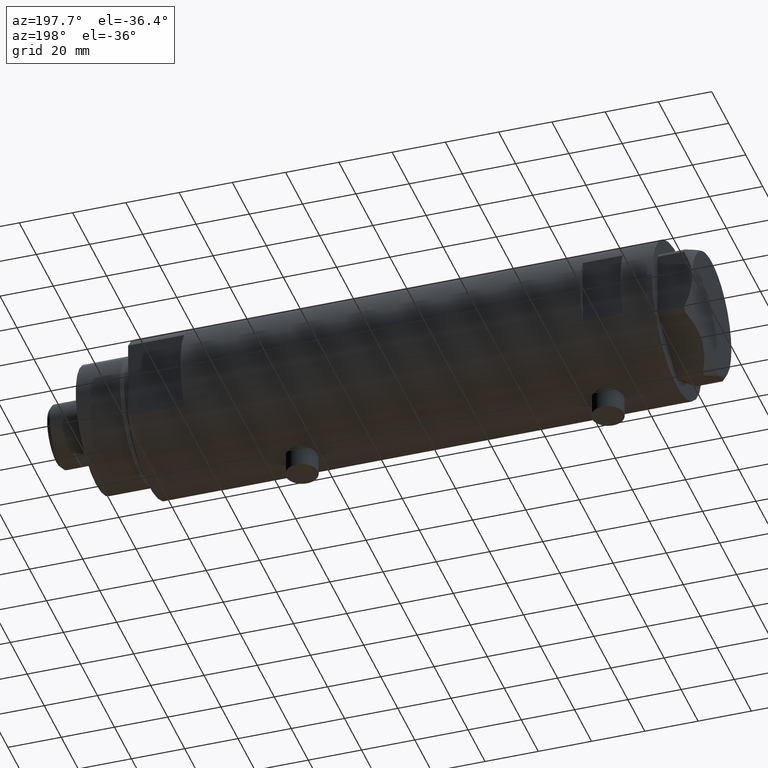
[diagram: clean part render]
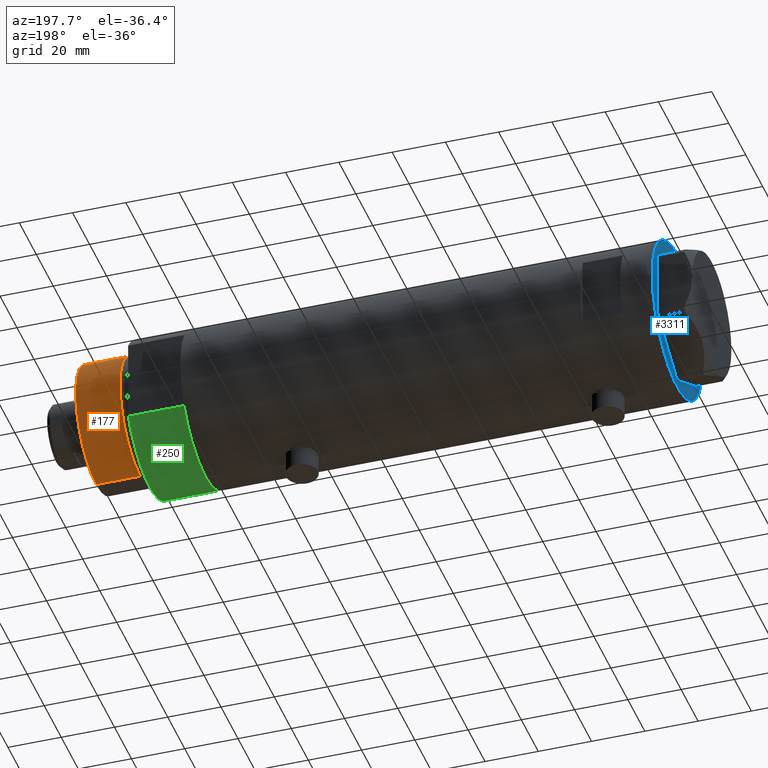
[diagram: same view with three faces highlighted in distinct colors, each labeled with its STEP entity id]
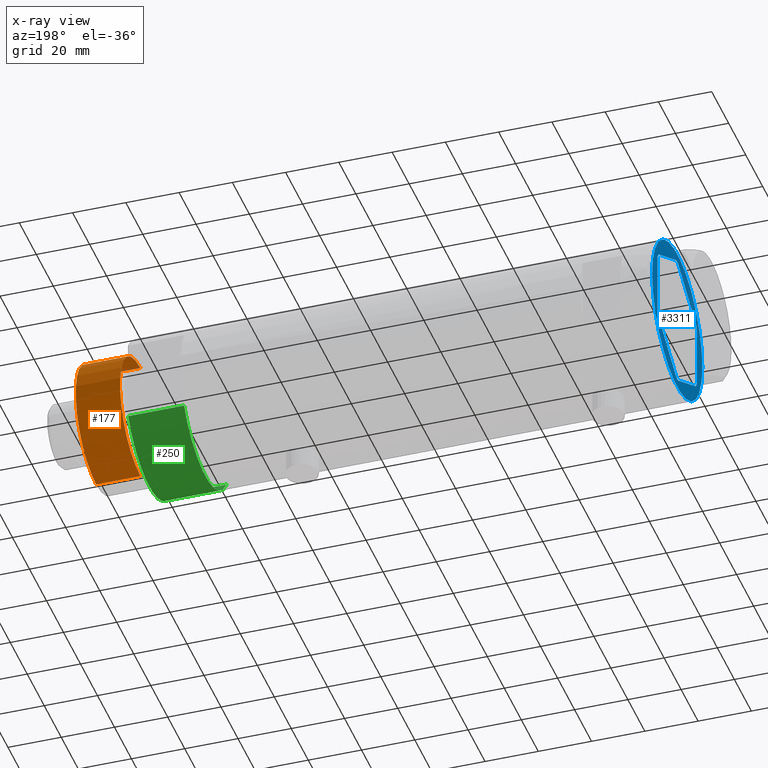
[diagram: x-ray of the same camera — body ghosted, the three highlighted faces saturated]
A machine part, auxiliary view with three faces highlighted in distinct colors.
The next image is the same camera in x-ray (body ghosted, the three faces saturated) — at least one of them is partly hidden behind the body in this view.
Their STEP definitions:

[orange] entity #177 — the highlighted cylindrical surface (partial cylindrical patch) has radius 24 mm, axis along (-1, -0, 0).
#177 = ADVANCED_FACE ( 'NONE', ( #2908 ), #809, .T. ) ;
#221 = DIRECTION ( 'NONE',  ( 1.000000000000000000, 0.000000000000000000, 0.000000000000000000 ) ) ;
#228 = ORIENTED_EDGE ( 'NONE', *, *, #3316, .F. ) ;
#359 = EDGE_CURVE ( 'NONE', #992, #3082, #1311, .T. ) ;
#479 = EDGE_CURVE ( 'NONE', #956, #3082, #4084, .T. ) ;
#809 = CYLINDRICAL_SURFACE ( 'NONE', #3227, 24.00000000000000355 ) ;
#924 = EDGE_LOOP ( 'NONE', ( #228, #1087, #1819, #1460 ) ) ;
#956 = VERTEX_POINT ( 'NONE', #1099 ) ;
#962 = DIRECTION ( 'NONE',  ( -0.000000000000000000, -0.000000000000000000, 1.000000000000000000 ) ) ;
#992 = VERTEX_POINT ( 'NONE', #2160 ) ;
#1087 = ORIENTED_EDGE ( 'NONE', *, *, #1793, .T. ) ;
#1099 = CARTESIAN_POINT ( 'NONE',  ( 24.00000000000000355, 2.939152317953648289E-15, 24.37384048104054557 ) ) ;
#1180 = CARTESIAN_POINT ( 'NONE',  ( 24.00000000000000355, 2.939152317953648289E-15, 41.00000000000000000 ) ) ;
#1311 = LINE ( 'NONE', #4023, #4305 ) ;
#1449 = LINE ( 'NONE', #1180, #2949 ) ;
#1453 = VERTEX_POINT ( 'NONE', #2882 ) ;
#1460 = ORIENTED_EDGE ( 'NONE', *, *, #359, .F. ) ;
#1793 = EDGE_CURVE ( 'NONE', #1453, #956, #1449, .T. ) ;
#1819 = ORIENTED_EDGE ( 'NONE', *, *, #479, .T. ) ;
#1924 = CARTESIAN_POINT ( 'NONE',  ( 0.000000000000000000, 0.000000000000000000, 41.00000000000000000 ) ) ;
#2028 = DIRECTION ( 'NONE',  ( 1.000000000000000000, 0.000000000000000000, 0.000000000000000000 ) ) ;
#2152 = CARTESIAN_POINT ( 'NONE',  ( 0.000000000000000000, 0.000000000000000000, 41.00000000000000000 ) ) ;
#2160 = CARTESIAN_POINT ( 'NONE',  ( -24.00000000000000355, 0.000000000000000000, 41.00000000000000000 ) ) ;
#2309 = DIRECTION ( 'NONE',  ( -0.000000000000000000, -0.000000000000000000, -1.000000000000000000 ) ) ;
#2566 = DIRECTION ( 'NONE',  ( -1.000000000000000000, 0.000000000000000000, 0.000000000000000000 ) ) ;
#2882 = CARTESIAN_POINT ( 'NONE',  ( 24.00000000000000355, 2.939152317953648289E-15, 41.00000000000000000 ) ) ;
#2908 = FACE_OUTER_BOUND ( 'NONE', #924, .T. ) ;
#2949 = VECTOR ( 'NONE', #3502, 1000.000000000000000 ) ;
#3082 = VERTEX_POINT ( 'NONE', #4200 ) ;
#3227 = AXIS2_PLACEMENT_3D ( 'NONE', #2152, #3959, #2566 ) ;
#3309 = DIRECTION ( 'NONE',  ( 0.000000000000000000, 0.000000000000000000, 1.000000000000000000 ) ) ;
#3316 = EDGE_CURVE ( 'NONE', #1453, #992, #3966, .T. ) ;
#3502 = DIRECTION ( 'NONE',  ( -0.000000000000000000, -0.000000000000000000, -1.000000000000000000 ) ) ;
#3752 = CARTESIAN_POINT ( 'NONE',  ( 0.000000000000000000, 0.000000000000000000, 24.37384048104054557 ) ) ;
#3867 = AXIS2_PLACEMENT_3D ( 'NONE', #3752, #962, #2028 ) ;
#3959 = DIRECTION ( 'NONE',  ( -0.000000000000000000, -0.000000000000000000, -1.000000000000000000 ) ) ;
#3966 = CIRCLE ( 'NONE', #4258, 24.00000000000000355 ) ;
#4023 = CARTESIAN_POINT ( 'NONE',  ( -24.00000000000000355, 0.000000000000000000, 41.00000000000000000 ) ) ;
#4084 = CIRCLE ( 'NONE', #3867, 24.00000000000000355 ) ;
#4200 = CARTESIAN_POINT ( 'NONE',  ( -24.00000000000000355, 0.000000000000000000, 24.37384048104054557 ) ) ;
#4258 = AXIS2_PLACEMENT_3D ( 'NONE', #1924, #3309, #221 ) ;
#4305 = VECTOR ( 'NONE', #2309, 1000.000000000000000 ) ;

[blue] entity #3311 — the highlighted planar face has unit normal (1, 0, -0).
#10 = CARTESIAN_POINT ( 'NONE',  ( 22.51502577388080795, -12.99905619136115398, 0.000000000000000000 ) ) ;
#40 = CARTESIAN_POINT ( 'NONE',  ( -22.99999999999990408, -13.27905619136147841, 0.000000000000000000 ) ) ;
#42 = LINE ( 'NONE', #3452, #3749 ) ;
#43 = CARTESIAN_POINT ( 'NONE',  ( 1.859873512960652550E-13, -25.99811238272274139, 0.000000000000000000 ) ) ;
#49 = ORIENTED_EDGE ( 'NONE', *, *, #3998, .F. ) ;
#81 = VECTOR ( 'NONE', #251, 1000.000000000000000 ) ;
#115 = DIRECTION ( 'NONE',  ( 0.000000000000000000, 0.000000000000000000, -1.000000000000000000 ) ) ;
#184 = VERTEX_POINT ( 'NONE', #3915 ) ;
#206 = VECTOR ( 'NONE', #1881, 1000.000000000000000 ) ;
#251 = DIRECTION ( 'NONE',  ( 1.000000000000000000, 3.576939520802682722E-15, -0.000000000000000000 ) ) ;
#268 = CIRCLE ( 'NONE', #2791, 29.50000000000000355 ) ;
#372 = DIRECTION ( 'NONE',  ( -1.000000000000000000, 0.000000000000000000, 0.000000000000000000 ) ) ;
#426 = ORIENTED_EDGE ( 'NONE', *, *, #2103, .F. ) ;
#442 = CARTESIAN_POINT ( 'NONE',  ( 23.00000000000008527, -13.27905619136115867, 0.000000000000000000 ) ) ;
#457 = CARTESIAN_POINT ( 'NONE',  ( 22.03005154776124996, 13.83905619136162635, 0.000000000000000000 ) ) ;
#460 = ORIENTED_EDGE ( 'NONE', *, *, #1480, .F. ) ;
#507 = LINE ( 'NONE', #1162, #206 ) ;
#531 = EDGE_CURVE ( 'NONE', #4172, #3897, #268, .T. ) ;
#576 = DIRECTION ( 'NONE',  ( -1.000000000000000000, 0.000000000000000000, 0.000000000000000000 ) ) ;
#592 = CARTESIAN_POINT ( 'NONE',  ( -9.299367564803055752E-14, 25.99811238272273428, 0.000000000000000000 ) ) ;
#665 = EDGE_CURVE ( 'NONE', #3297, #3108, #507, .T. ) ;
#725 = DIRECTION ( 'NONE',  ( 0.8660254037844415942, -0.4999999999999950595, 0.000000000000000000 ) ) ;
#764 = CARTESIAN_POINT ( 'NONE',  ( 0.000000000000000000, 26.55811238272274366, 0.000000000000000000 ) ) ;
#780 = CIRCLE ( 'NONE', #1498, 29.50000000000000355 ) ;
#826 = EDGE_CURVE ( 'NONE', #3897, #4172, #780, .T. ) ;
#853 = DIRECTION ( 'NONE',  ( 0.8660254037844345998, 0.5000000000000069944, 0.000000000000000000 ) ) ;
#854 = LINE ( 'NONE', #3986, #1419 ) ;
#865 = EDGE_CURVE ( 'NONE', #184, #1700, #2617, .T. ) ;
#897 = EDGE_CURVE ( 'NONE', #3200, #3108, #854, .T. ) ;
#913 = DIRECTION ( 'NONE',  ( 0.000000000000000000, 0.000000000000000000, -1.000000000000000000 ) ) ;
#963 = PLANE ( 'NONE',  #2161 ) ;
#1002 = VECTOR ( 'NONE', #2764, 1000.000000000000000 ) ;
#1018 = LINE ( 'NONE', #40, #3682 ) ;
#1123 = ORIENTED_EDGE ( 'NONE', *, *, #665, .F. ) ;
#1162 = CARTESIAN_POINT ( 'NONE',  ( -22.99999999999999645, 13.27905619136132032, 0.000000000000000000 ) ) ;
#1233 = VECTOR ( 'NONE', #1813, 1000.000000000000000 ) ;
#1294 = FACE_OUTER_BOUND ( 'NONE', #3157, .T. ) ;
#1348 = VECTOR ( 'NONE', #4145, 999.9999999999998863 ) ;
#1355 = VERTEX_POINT ( 'NONE', #1767 ) ;
#1390 = LINE ( 'NONE', #2819, #1348 ) ;
#1392 = CARTESIAN_POINT ( 'NONE',  ( 23.00000000000007461, -12.15905619136117721, 0.000000000000000000 ) ) ;
#1418 = DIRECTION ( 'NONE',  ( 0.4999999999999986677, 0.8660254037844392627, -0.000000000000000000 ) ) ;
#1419 = VECTOR ( 'NONE', #3827, 1000.000000000000000 ) ;
#1429 = VECTOR ( 'NONE', #1749, 999.9999999999998863 ) ;
#1480 = EDGE_CURVE ( 'NONE', #2479, #1510, #2251, .T. ) ;
#1498 = AXIS2_PLACEMENT_3D ( 'NONE', #4005, #913, #576 ) ;
#1510 = VERTEX_POINT ( 'NONE', #4300 ) ;
#1519 = ORIENTED_EDGE ( 'NONE', *, *, #3651, .T. ) ;
#1536 = ORIENTED_EDGE ( 'NONE', *, *, #2512, .T. ) ;
#1700 = VERTEX_POINT ( 'NONE', #1811 ) ;
#1722 = LINE ( 'NONE', #4164, #1429 ) ;
#1748 = EDGE_CURVE ( 'NONE', #2479, #2421, #4225, .T. ) ;
#1749 = DIRECTION ( 'NONE',  ( 0.5000000000000086597, -0.8660254037844337116, -0.000000000000000000 ) ) ;
#1767 = CARTESIAN_POINT ( 'NONE',  ( 22.99999999999982236, 12.15905619136166571, 0.000000000000000000 ) ) ;
#1811 = CARTESIAN_POINT ( 'NONE',  ( -22.03005154776141339, 13.83905619136132792, 0.000000000000000000 ) ) ;
#1813 = DIRECTION ( 'NONE',  ( -1.032024811306395780E-14, 1.000000000000000000, 0.000000000000000000 ) ) ;
#1881 = DIRECTION ( 'NONE',  ( 3.527173405730720141E-15, -1.000000000000000000, 0.000000000000000000 ) ) ;
#1895 = LINE ( 'NONE', #592, #81 ) ;
#1946 = CARTESIAN_POINT ( 'NONE',  ( 1.854543075583504180E-13, -26.55811238272274366, 0.000000000000000000 ) ) ;
#1953 = ORIENTED_EDGE ( 'NONE', *, *, #4263, .T. ) ;
#1986 = CARTESIAN_POINT ( 'NONE',  ( 0.000000000000000000, 0.000000000000000000, 0.000000000000000000 ) ) ;
#2103 = EDGE_CURVE ( 'NONE', #3121, #3020, #1390, .T. ) ;
#2133 = DIRECTION ( 'NONE',  ( -0.8660254037844380415, -0.5000000000000008882, 0.000000000000000000 ) ) ;
#2147 = CARTESIAN_POINT ( 'NONE',  ( 0.000000000000000000, 0.000000000000000000, 0.000000000000000000 ) ) ;
#2161 = AXIS2_PLACEMENT_3D ( 'NONE', #1986, #115, #4245 ) ;
#2251 = LINE ( 'NONE', #1946, #4384 ) ;
#2302 = CARTESIAN_POINT ( 'NONE',  ( 29.50000000000000355, 0.000000000000000000, 0.000000000000000000 ) ) ;
#2421 = VERTEX_POINT ( 'NONE', #2681 ) ;
#2479 = VERTEX_POINT ( 'NONE', #3463 ) ;
#2481 = EDGE_CURVE ( 'NONE', #4397, #1510, #2718, .T. ) ;
#2512 = EDGE_CURVE ( 'NONE', #3121, #1355, #1722, .T. ) ;
#2617 = LINE ( 'NONE', #764, #3231 ) ;
#2629 = CARTESIAN_POINT ( 'NONE',  ( -29.50000000000000355, 3.612708057484692393E-15, 0.000000000000000000 ) ) ;
#2681 = CARTESIAN_POINT ( 'NONE',  ( -0.9699484522383873264, -25.99811238272275205, 0.000000000000000000 ) ) ;
#2718 = LINE ( 'NONE', #10, #1002 ) ;
#2764 = DIRECTION ( 'NONE',  ( -0.4999999999999915623, -0.8660254037844434816, -0.000000000000000000 ) ) ;
#2791 = AXIS2_PLACEMENT_3D ( 'NONE', #2147, #3860, #372 ) ;
#2819 = CARTESIAN_POINT ( 'NONE',  ( 22.99999999999981171, 13.27905619136164184, 0.000000000000000000 ) ) ;
#2865 = EDGE_LOOP ( 'NONE', ( #426, #1536, #3384, #4124, #460, #3487, #49, #3702, #1123, #1519, #3506, #1953 ) ) ;
#2973 = CARTESIAN_POINT ( 'NONE',  ( -22.03005154776132102, -13.83905619136147536, 0.000000000000000000 ) ) ;
#3013 = CARTESIAN_POINT ( 'NONE',  ( -22.99999999999999289, 12.15905619136131754, 0.000000000000000000 ) ) ;
#3020 = VERTEX_POINT ( 'NONE', #3209 ) ;
#3064 = ORIENTED_EDGE ( 'NONE', *, *, #826, .F. ) ;
#3108 = VERTEX_POINT ( 'NONE', #3186 ) ;
#3121 = VERTEX_POINT ( 'NONE', #457 ) ;
#3157 = EDGE_LOOP ( 'NONE', ( #4423, #3064 ) ) ;
#3186 = CARTESIAN_POINT ( 'NONE',  ( -22.99999999999990763, -12.15905619136148985, 0.000000000000000000 ) ) ;
#3200 = VERTEX_POINT ( 'NONE', #2973 ) ;
#3209 = CARTESIAN_POINT ( 'NONE',  ( 0.9699484522385886098, 25.99811238272273783, 0.000000000000000000 ) ) ;
#3231 = VECTOR ( 'NONE', #2133, 1000.000000000000227 ) ;
#3297 = VERTEX_POINT ( 'NONE', #3013 ) ;
#3311 = ADVANCED_FACE ( 'NONE', ( #3711, #1294 ), #963, .F. ) ;
#3376 = VECTOR ( 'NONE', #3838, 1000.000000000000000 ) ;
#3384 = ORIENTED_EDGE ( 'NONE', *, *, #3724, .F. ) ;
#3452 = CARTESIAN_POINT ( 'NONE',  ( -22.51502577388069781, 12.99905619136134050, 0.000000000000000000 ) ) ;
#3463 = CARTESIAN_POINT ( 'NONE',  ( 0.9699484522387533669, -25.99811238272273428, 0.000000000000000000 ) ) ;
#3487 = ORIENTED_EDGE ( 'NONE', *, *, #1748, .T. ) ;
#3506 = ORIENTED_EDGE ( 'NONE', *, *, #865, .F. ) ;
#3577 = LINE ( 'NONE', #442, #1233 ) ;
#3651 = EDGE_CURVE ( 'NONE', #3297, #1700, #42, .T. ) ;
#3682 = VECTOR ( 'NONE', #725, 1000.000000000000000 ) ;
#3702 = ORIENTED_EDGE ( 'NONE', *, *, #897, .T. ) ;
#3711 = FACE_BOUND ( 'NONE', #2865, .T. ) ;
#3724 = EDGE_CURVE ( 'NONE', #4397, #1355, #3577, .T. ) ;
#3749 = VECTOR ( 'NONE', #1418, 1000.000000000000227 ) ;
#3827 = DIRECTION ( 'NONE',  ( -0.5000000000000086597, 0.8660254037844337116, -0.000000000000000000 ) ) ;
#3838 = DIRECTION ( 'NONE',  ( -1.000000000000000000, -7.153879041605523216E-15, -0.000000000000000000 ) ) ;
#3860 = DIRECTION ( 'NONE',  ( 0.000000000000000000, 0.000000000000000000, -1.000000000000000000 ) ) ;
#3897 = VERTEX_POINT ( 'NONE', #2629 ) ;
#3915 = CARTESIAN_POINT ( 'NONE',  ( -0.9699484522385893870, 25.99811238272273073, 0.000000000000000000 ) ) ;
#3986 = CARTESIAN_POINT ( 'NONE',  ( -22.51502577388055215, -12.99905619136159629, 0.000000000000000000 ) ) ;
#3998 = EDGE_CURVE ( 'NONE', #3200, #2421, #1018, .T. ) ;
#4005 = CARTESIAN_POINT ( 'NONE',  ( 0.000000000000000000, 0.000000000000000000, 0.000000000000000000 ) ) ;
#4124 = ORIENTED_EDGE ( 'NONE', *, *, #2481, .T. ) ;
#4145 = DIRECTION ( 'NONE',  ( -0.8660254037844415942, 0.4999999999999949485, 0.000000000000000000 ) ) ;
#4164 = CARTESIAN_POINT ( 'NONE',  ( 22.51502577388055926, 12.99905619136160162, 0.000000000000000000 ) ) ;
#4172 = VERTEX_POINT ( 'NONE', #2302 ) ;
#4225 = LINE ( 'NONE', #43, #3376 ) ;
#4245 = DIRECTION ( 'NONE',  ( -1.000000000000000000, 0.000000000000000000, -0.000000000000000000 ) ) ;
#4263 = EDGE_CURVE ( 'NONE', #184, #3020, #1895, .T. ) ;
#4300 = CARTESIAN_POINT ( 'NONE',  ( 22.03005154776153773, -13.83905619136115561, 0.000000000000000000 ) ) ;
#4384 = VECTOR ( 'NONE', #853, 999.9999999999998863 ) ;
#4397 = VERTEX_POINT ( 'NONE', #1392 ) ;
#4423 = ORIENTED_EDGE ( 'NONE', *, *, #531, .F. ) ;

[green] entity #250 — the highlighted cylindrical surface (partial cylindrical patch) has radius 29.5 mm, axis along (-1, -0, 0).
#74 = LINE ( 'NONE', #3256, #569 ) ;
#219 = DIRECTION ( 'NONE',  ( 0.000000000000000000, 0.000000000000000000, 1.000000000000000000 ) ) ;
#250 = ADVANCED_FACE ( 'NONE', ( #1288 ), #573, .T. ) ;
#343 = AXIS2_PLACEMENT_3D ( 'NONE', #1799, #219, #2569 ) ;
#540 = EDGE_LOOP ( 'NONE', ( #2898, #4216, #2893, #3595 ) ) ;
#569 = VECTOR ( 'NONE', #2123, 1000.000000000000000 ) ;
#572 = VECTOR ( 'NONE', #740, 1000.000000000000000 ) ;
#573 = CYLINDRICAL_SURFACE ( 'NONE', #986, 29.50000000000000355 ) ;
#695 = EDGE_CURVE ( 'NONE', #3931, #3569, #1278, .T. ) ;
#740 = DIRECTION ( 'NONE',  ( -0.000000000000000000, -0.000000000000000000, 1.000000000000000000 ) ) ;
#986 = AXIS2_PLACEMENT_3D ( 'NONE', #1650, #3689, #1943 ) ;
#1278 = CIRCLE ( 'NONE', #343, 29.50000000000000355 ) ;
#1288 = FACE_OUTER_BOUND ( 'NONE', #540, .T. ) ;
#1366 = LINE ( 'NONE', #1754, #572 ) ;
#1650 = CARTESIAN_POINT ( 'NONE',  ( 0.000000000000000000, 0.000000000000000000, 21.00000000000000000 ) ) ;
#1754 = CARTESIAN_POINT ( 'NONE',  ( 15.66045976336583401, 25.00000000000000000, 0.000000000000000000 ) ) ;
#1779 = EDGE_CURVE ( 'NONE', #2688, #3931, #74, .T. ) ;
#1799 = CARTESIAN_POINT ( 'NONE',  ( 0.000000000000000000, 0.000000000000000000, 21.00000000000000000 ) ) ;
#1883 = AXIS2_PLACEMENT_3D ( 'NONE', #3023, #2062, #3446 ) ;
#1943 = DIRECTION ( 'NONE',  ( -1.000000000000000000, 0.000000000000000000, 0.000000000000000000 ) ) ;
#2062 = DIRECTION ( 'NONE',  ( 0.000000000000000000, 0.000000000000000000, 1.000000000000000000 ) ) ;
#2117 = EDGE_CURVE ( 'NONE', #3441, #3569, #1366, .T. ) ;
#2123 = DIRECTION ( 'NONE',  ( -0.000000000000000000, -0.000000000000000000, 1.000000000000000000 ) ) ;
#2485 = CARTESIAN_POINT ( 'NONE',  ( 15.66045976336583045, 24.99999999999999645, 20.99999999999999645 ) ) ;
#2569 = DIRECTION ( 'NONE',  ( 1.000000000000000000, 0.000000000000000000, 0.000000000000000000 ) ) ;
#2646 = CARTESIAN_POINT ( 'NONE',  ( 15.66045976336583045, -25.00000000000000000, 21.00000000000000355 ) ) ;
#2688 = VERTEX_POINT ( 'NONE', #3430 ) ;
#2893 = ORIENTED_EDGE ( 'NONE', *, *, #4415, .T. ) ;
#2898 = ORIENTED_EDGE ( 'NONE', *, *, #695, .F. ) ;
#3023 = CARTESIAN_POINT ( 'NONE',  ( 0.000000000000000000, 0.000000000000000000, 0.000000000000000000 ) ) ;
#3256 = CARTESIAN_POINT ( 'NONE',  ( 15.66045976336583401, -25.00000000000000000, 0.000000000000000000 ) ) ;
#3430 = CARTESIAN_POINT ( 'NONE',  ( 15.66045976336583401, -25.00000000000000000, 0.000000000000000000 ) ) ;
#3441 = VERTEX_POINT ( 'NONE', #3507 ) ;
#3446 = DIRECTION ( 'NONE',  ( 1.000000000000000000, 0.000000000000000000, 0.000000000000000000 ) ) ;
#3507 = CARTESIAN_POINT ( 'NONE',  ( 15.66045976336582690, 25.00000000000000000, 0.000000000000000000 ) ) ;
#3569 = VERTEX_POINT ( 'NONE', #2485 ) ;
#3595 = ORIENTED_EDGE ( 'NONE', *, *, #2117, .T. ) ;
#3689 = DIRECTION ( 'NONE',  ( -0.000000000000000000, -0.000000000000000000, -1.000000000000000000 ) ) ;
#3822 = CIRCLE ( 'NONE', #1883, 29.50000000000000355 ) ;
#3931 = VERTEX_POINT ( 'NONE', #2646 ) ;
#4216 = ORIENTED_EDGE ( 'NONE', *, *, #1779, .F. ) ;
#4415 = EDGE_CURVE ( 'NONE', #2688, #3441, #3822, .T. ) ;